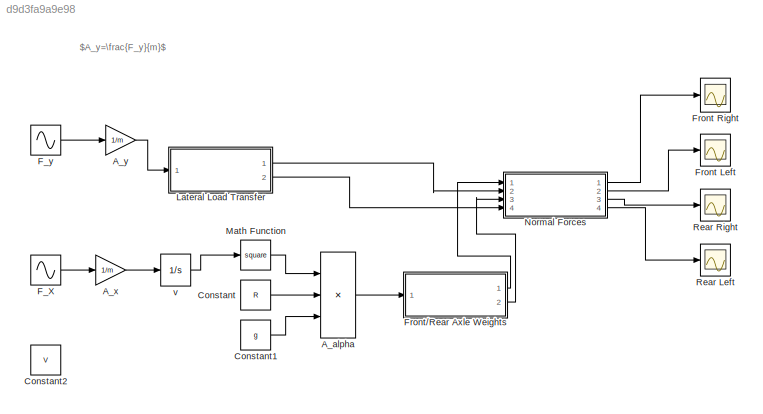
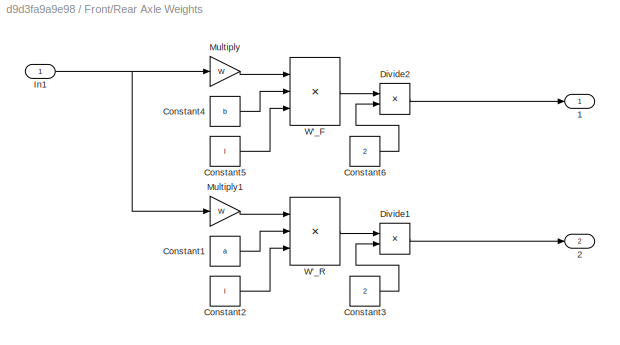
MODEL slx_d9d3fa9a9e98
KIND model
CONFIG AbsTol = auto
CONFIG EnableMultiTasking = off
CONFIG FixedStep = 0.1
CONFIG MaxStep = auto
CONFIG MinStep = auto
CONFIG RelTol = 1e-3
CONFIG SampleTimeConstraint = Unconstrained
CONFIG SolverName = FixedStepAuto
CONFIG StartTime = 0.0
CONFIG StopTime = 60
BLOCK [Product] A_alpha
  Inputs = /**
  Ports = [3, 1]
BLOCK [Gain] A_x
  Gain = 1/m
BLOCK [Gain] A_y
  Gain = 1/m
BLOCK [Constant] Constant
  Value = R
BLOCK [Constant] Constant1
  Value = g
BLOCK [Constant] Constant2
  Commented = on
  NameLocation = right
  Value = V
BLOCK [Sin] F_X
  Amplitude = 500
  Frequency = .2
  Ports = [0, 1]
  SampleTime = 0
BLOCK [Sin] F_y
  Amplitude = 50
  Frequency = .2
  Ports = [0, 1]
  SampleTime = 0
BLOCK [Scope] Front Left
  Floating = off
  NumInputPorts = 1
  Ports = [1]
  ScopeSpecificationString = Simulink.scopes.TimeScopeBlockCfg('CurrentConfiguration', extmgr.ConfigurationSet(extmgr.Configuration('Core','General UI',true),extmgr.Configuration('Core','Source UI',true),extmgr.Configuration('Sources','WiredSimulink',true,'DataLoggingVariableName','ScopeData1'),extmgr.Configuration('Visuals','Time Domain',true,'SerializedDisplays',{struct('MinYLimReal','1468.69165','MaxYLimReal','2869.51309',...<+1544ch>
BLOCK [Scope] Front Right
  Floating = off
  NumInputPorts = 1
  Ports = [1]
  ScopeSpecificationString = Simulink.scopes.TimeScopeBlockCfg('CurrentConfiguration', extmgr.ConfigurationSet(extmgr.Configuration('Core','General UI',true),extmgr.Configuration('Core','Source UI',true),extmgr.Configuration('Sources','WiredSimulink',true,'DataLoggingVariableName','ScopeData1'),extmgr.Configuration('Visuals','Time Domain',true,'SerializedDisplays',{struct('MinYLimReal','1468.68514','MaxYLimReal','2869.53901',...<+1425ch>
BLOCK [SubSystem] Front//Rear Axle Weights
  Ports = [1, 2]
BLOCK [Outport] Front//Rear Axle Weights/1
BLOCK [Outport] Front//Rear Axle Weights/2
  Port = 2
BLOCK [Constant] Front//Rear Axle Weights/Constant1
  Value = a
BLOCK [Constant] Front//Rear Axle Weights/Constant2
  Value = l
BLOCK [Constant] Front//Rear Axle Weights/Constant3
  Value = 2
BLOCK [Constant] Front//Rear Axle Weights/Constant4
  Value = b
BLOCK [Constant] Front//Rear Axle Weights/Constant5
  Value = l
BLOCK [Constant] Front//Rear Axle Weights/Constant6
  Value = 2
BLOCK [Product] Front//Rear Axle Weights/Divide1
  Inputs = */
  Ports = [2, 1]
BLOCK [Product] Front//Rear Axle Weights/Divide2
  Inputs = */
  Ports = [2, 1]
BLOCK [Inport] Front//Rear Axle Weights/In1
BLOCK [Gain] Front//Rear Axle Weights/Multiply
  Gain = W
BLOCK [Gain] Front//Rear Axle Weights/Multiply1
  Gain = W
BLOCK [Product] Front//Rear Axle Weights/W'_F
  Inputs = **/
  Ports = [3, 1]
BLOCK [Product] Front//Rear Axle Weights/W'_R
  Inputs = **/
  Ports = [3, 1]
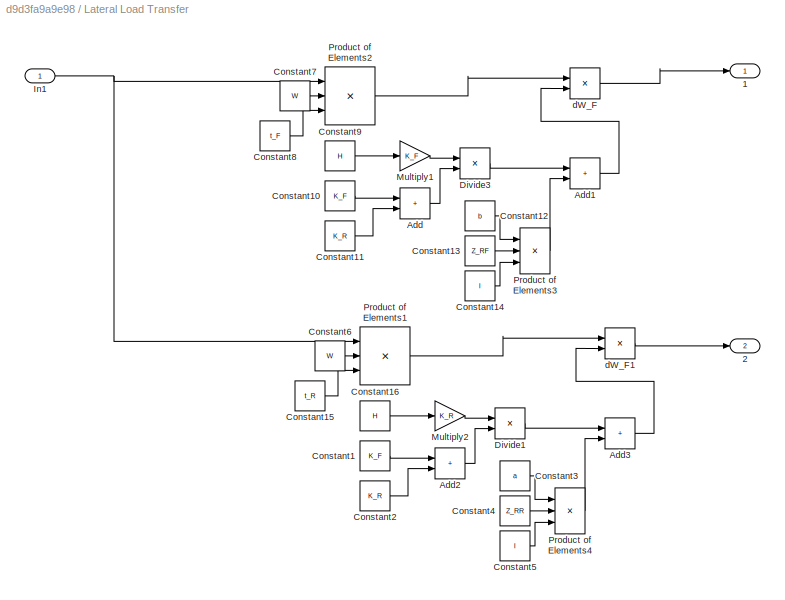
BLOCK [SubSystem] Lateral Load Transfer
  Ports = [1, 2]
BLOCK [Outport] Lateral Load Transfer/1
BLOCK [Outport] Lateral Load Transfer/2
  Port = 2
BLOCK [Sum] Lateral Load Transfer/Add
  IconShape = rectangular
  Ports = [2, 1]
BLOCK [Sum] Lateral Load Transfer/Add1
  IconShape = rectangular
  Ports = [2, 1]
BLOCK [Sum] Lateral Load Transfer/Add2
  IconShape = rectangular
  Ports = [2, 1]
BLOCK [Sum] Lateral Load Transfer/Add3
  IconShape = rectangular
  Ports = [2, 1]
BLOCK [Constant] Lateral Load Transfer/Constant1
  Value = K_F
BLOCK [Constant] Lateral Load Transfer/Constant10
  Value = K_F
BLOCK [Constant] Lateral Load Transfer/Constant11
  Value = K_R
BLOCK [Constant] Lateral Load Transfer/Constant12
  Value = b
BLOCK [Constant] Lateral Load Transfer/Constant13
  Value = Z_RF
BLOCK [Constant] Lateral Load Transfer/Constant14
  Value = l
BLOCK [Constant] Lateral Load Transfer/Constant15
  Value = t_R
BLOCK [Constant] Lateral Load Transfer/Constant16
  Value = H
BLOCK [Constant] Lateral Load Transfer/Constant2
  Value = K_R
BLOCK [Constant] Lateral Load Transfer/Constant3
  Value = a
BLOCK [Constant] Lateral Load Transfer/Constant4
  Value = Z_RR
BLOCK [Constant] Lateral Load Transfer/Constant5
  Value = l
BLOCK [Constant] Lateral Load Transfer/Constant6
  Value = W
BLOCK [Constant] Lateral Load Transfer/Constant7
  Value = W
BLOCK [Constant] Lateral Load Transfer/Constant8
  Value = t_F
BLOCK [Constant] Lateral Load Transfer/Constant9
  Value = H
BLOCK [Product] Lateral Load Transfer/Divide1
  Inputs = */
  Ports = [2, 1]
BLOCK [Product] Lateral Load Transfer/Divide3
  Inputs = */
  Ports = [2, 1]
BLOCK [Inport] Lateral Load Transfer/In1
BLOCK [Gain] Lateral Load Transfer/Multiply1
  Gain = K_F
BLOCK [Gain] Lateral Load Transfer/Multiply2
  Gain = K_R
BLOCK [Product] Lateral Load Transfer/Product of Elements1
  Inputs = **/
  Ports = [3, 1]
BLOCK [Product] Lateral Load Transfer/Product of Elements2
  Inputs = **/
  Ports = [3, 1]
BLOCK [Product] Lateral Load Transfer/Product of Elements3
  Inputs = **/
  Ports = [3, 1]
BLOCK [Product] Lateral Load Transfer/Product of Elements4
  Inputs = **/
  Ports = [3, 1]
BLOCK [Product] Lateral Load Transfer/dW_F
  Inputs = **
  Ports = [2, 1]
BLOCK [Product] Lateral Load Transfer/dW_F1
  Inputs = **
  Ports = [2, 1]
BLOCK [Math] Math Function
  Operator = square
  Ports = [1, 1]
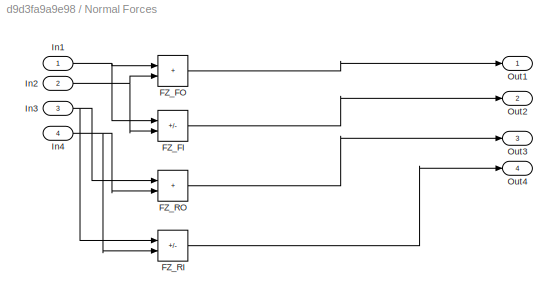
BLOCK [SubSystem] Normal Forces
  Ports = [4, 4]
BLOCK [Sum] Normal Forces/FZ_FI
  IconShape = rectangular
  Inputs = +-
  Ports = [2, 1]
BLOCK [Sum] Normal Forces/FZ_FO
  IconShape = rectangular
  Ports = [2, 1]
BLOCK [Sum] Normal Forces/FZ_RI
  IconShape = rectangular
  Inputs = +-
  Ports = [2, 1]
BLOCK [Sum] Normal Forces/FZ_RO
  IconShape = rectangular
  Ports = [2, 1]
BLOCK [Inport] Normal Forces/In1
BLOCK [Inport] Normal Forces/In2
  Port = 2
BLOCK [Inport] Normal Forces/In3
  Port = 3
BLOCK [Inport] Normal Forces/In4
  Port = 4
BLOCK [Outport] Normal Forces/Out1
BLOCK [Outport] Normal Forces/Out2
  Port = 2
BLOCK [Outport] Normal Forces/Out3
  Port = 3
BLOCK [Outport] Normal Forces/Out4
  Port = 4
BLOCK [Scope] Rear Left
  Floating = off
  NumInputPorts = 1
  Ports = [1]
  ScopeSpecificationString = Simulink.scopes.TimeScopeBlockCfg('CurrentConfiguration', extmgr.ConfigurationSet(extmgr.Configuration('Core','General UI',true),extmgr.Configuration('Core','Source UI',true),extmgr.Configuration('Sources','WiredSimulink',true,'DataLoggingVariableName','ScopeData3'),extmgr.Configuration('Visuals','Time Domain',true,'SerializedDisplays',{struct('MinYLimReal','1638.41484','MaxYLimReal','3080.27706',...<+1396ch>
BLOCK [Scope] Rear Right
  Floating = off
  NumInputPorts = 1
  Ports = [1]
  ScopeSpecificationString = Simulink.scopes.TimeScopeBlockCfg('CurrentConfiguration', extmgr.ConfigurationSet(extmgr.Configuration('Core','General UI',true),extmgr.Configuration('Core','Source UI',true),extmgr.Configuration('Sources','WiredSimulink',true,'DataLoggingVariableName','ScopeData2'),extmgr.Configuration('Visuals','Time Domain',true,'SerializedDisplays',{struct('MinYLimReal','1638.42143','MaxYLimReal','3080.28017',...<+1425ch>
BLOCK [Integrator] v
  InitialCondition = 100
  Ports = [1, 1]
ANNOTATION (root): $A_y=\frac{F_y}{m}$
LINE A_alpha:1 -> Front//Rear Axle Weights:1
LINE A_x:1 -> v:1
LINE A_y:1 -> Lateral Load Transfer:1
LINE Constant1:1 -> A_alpha:3
LINE Constant:1 -> A_alpha:2
LINE F_X:1 -> A_x:1
LINE F_y:1 -> A_y:1
LINE Front//Rear Axle Weights/Constant1:1 -> Front//Rear Axle Weights/W'_R:2
LINE Front//Rear Axle Weights/Constant2:1 -> Front//Rear Axle Weights/W'_R:3
LINE Front//Rear Axle Weights/Constant3:1 -> Front//Rear Axle Weights/Divide1:2
LINE Front//Rear Axle Weights/Constant4:1 -> Front//Rear Axle Weights/W'_F:2
LINE Front//Rear Axle Weights/Constant5:1 -> Front//Rear Axle Weights/W'_F:3
LINE Front//Rear Axle Weights/Constant6:1 -> Front//Rear Axle Weights/Divide2:2
LINE Front//Rear Axle Weights/Divide1:1 -> Front//Rear Axle Weights/2:1
LINE Front//Rear Axle Weights/Divide2:1 -> Front//Rear Axle Weights/1:1
NET Front//Rear Axle Weights/In1:1 -> Front//Rear Axle Weights/Multiply1:1, Front//Rear Axle Weights/Multiply:1
LINE Front//Rear Axle Weights/Multiply1:1 -> Front//Rear Axle Weights/W'_R:1
LINE Front//Rear Axle Weights/Multiply:1 -> Front//Rear Axle Weights/W'_F:1
LINE Front//Rear Axle Weights/W'_F:1 -> Front//Rear Axle Weights/Divide2:1
LINE Front//Rear Axle Weights/W'_R:1 -> Front//Rear Axle Weights/Divide1:1
LINE Front//Rear Axle Weights:1 -> Normal Forces:1
LINE Front//Rear Axle Weights:2 -> Normal Forces:3
LINE Lateral Load Transfer/Add1:1 -> Lateral Load Transfer/dW_F:2
LINE Lateral Load Transfer/Add2:1 -> Lateral Load Transfer/Divide1:2
LINE Lateral Load Transfer/Add3:1 -> Lateral Load Transfer/dW_F1:2
LINE Lateral Load Transfer/Add:1 -> Lateral Load Transfer/Divide3:2
LINE Lateral Load Transfer/Constant10:1 -> Lateral Load Transfer/Add:1
LINE Lateral Load Transfer/Constant11:1 -> Lateral Load Transfer/Add:2
LINE Lateral Load Transfer/Constant12:1 -> Lateral Load Transfer/Product of Elements3:1
LINE Lateral Load Transfer/Constant13:1 -> Lateral Load Transfer/Product of Elements3:2
LINE Lateral Load Transfer/Constant14:1 -> Lateral Load Transfer/Product of Elements3:3
LINE Lateral Load Transfer/Constant15:1 -> Lateral Load Transfer/Product of Elements1:3
LINE Lateral Load Transfer/Constant16:1 -> Lateral Load Transfer/Multiply2:1
LINE Lateral Load Transfer/Constant1:1 -> Lateral Load Transfer/Add2:1
LINE Lateral Load Transfer/Constant2:1 -> Lateral Load Transfer/Add2:2
LINE Lateral Load Transfer/Constant3:1 -> Lateral Load Transfer/Product of Elements4:1
LINE Lateral Load Transfer/Constant4:1 -> Lateral Load Transfer/Product of Elements4:2
LINE Lateral Load Transfer/Constant5:1 -> Lateral Load Transfer/Product of Elements4:3
LINE Lateral Load Transfer/Constant6:1 -> Lateral Load Transfer/Product of Elements1:2
LINE Lateral Load Transfer/Constant7:1 -> Lateral Load Transfer/Product of Elements2:2
LINE Lateral Load Transfer/Constant8:1 -> Lateral Load Transfer/Product of Elements2:3
LINE Lateral Load Transfer/Constant9:1 -> Lateral Load Transfer/Multiply1:1
LINE Lateral Load Transfer/Divide1:1 -> Lateral Load Transfer/Add3:1
LINE Lateral Load Transfer/Divide3:1 -> Lateral Load Transfer/Add1:1
NET Lateral Load Transfer/In1:1 -> Lateral Load Transfer/Product of Elements1:1, Lateral Load Transfer/Product of Elements2:1
LINE Lateral Load Transfer/Multiply1:1 -> Lateral Load Transfer/Divide3:1
LINE Lateral Load Transfer/Multiply2:1 -> Lateral Load Transfer/Divide1:1
LINE Lateral Load Transfer/Product of Elements1:1 -> Lateral Load Transfer/dW_F1:1
LINE Lateral Load Transfer/Product of Elements2:1 -> Lateral Load Transfer/dW_F:1
LINE Lateral Load Transfer/Product of Elements3:1 -> Lateral Load Transfer/Add1:2
LINE Lateral Load Transfer/Product of Elements4:1 -> Lateral Load Transfer/Add3:2
LINE Lateral Load Transfer/dW_F1:1 -> Lateral Load Transfer/2:1
LINE Lateral Load Transfer/dW_F:1 -> Lateral Load Transfer/1:1
LINE Lateral Load Transfer:1 -> Normal Forces:2
LINE Lateral Load Transfer:2 -> Normal Forces:4
LINE Math Function:1 -> A_alpha:1
LINE Normal Forces/FZ_FI:1 -> Normal Forces/Out2:1
LINE Normal Forces/FZ_FO:1 -> Normal Forces/Out1:1
LINE Normal Forces/FZ_RI:1 -> Normal Forces/Out4:1
LINE Normal Forces/FZ_RO:1 -> Normal Forces/Out3:1
NET Normal Forces/In1:1 -> Normal Forces/FZ_FI:1, Normal Forces/FZ_FO:1
NET Normal Forces/In2:1 -> Normal Forces/FZ_FI:2, Normal Forces/FZ_FO:2
NET Normal Forces/In3:1 -> Normal Forces/FZ_RI:1, Normal Forces/FZ_RO:1
NET Normal Forces/In4:1 -> Normal Forces/FZ_RI:2, Normal Forces/FZ_RO:2
LINE Normal Forces:1 -> Front Right:1
LINE Normal Forces:2 -> Front Left:1
LINE Normal Forces:3 -> Rear Right:1
LINE Normal Forces:4 -> Rear Left:1
LINE v:1 -> Math Function:1
note: NET lines group one-source signal fan-out (src -> all destinations, sorted); 1:1 wires keep LINE
